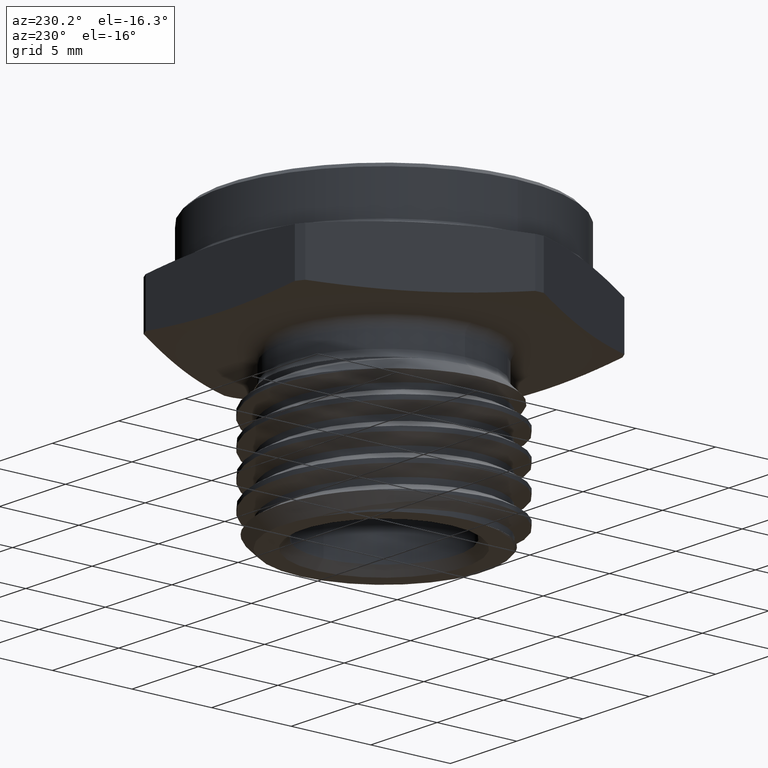
[diagram: clean part render]
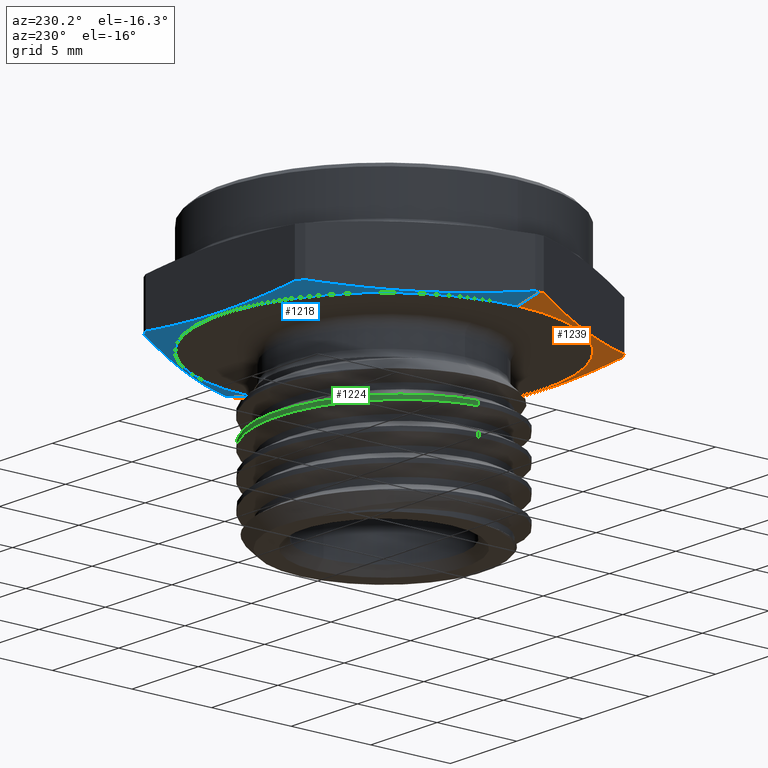
[diagram: same view with three faces highlighted in distinct colors, each labeled with its STEP entity id]
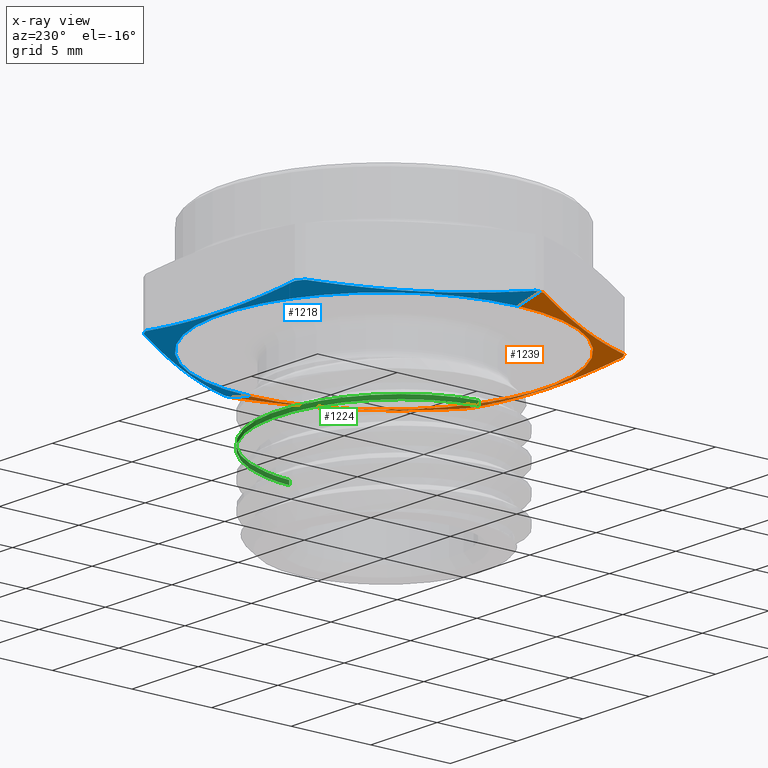
[diagram: x-ray of the same camera — body ghosted, the three highlighted faces saturated]
A machine part, auxiliary view with three faces highlighted in distinct colors.
The next image is the same camera in x-ray (body ghosted, the three faces saturated) — at least one of them is partly hidden behind the body in this view.
Their STEP definitions:

[orange] entity #1239 — the highlighted conical surface has half-angle 78 deg.
#41 = CIRCLE ( 'NONE', #225, 0.4616537180435968900 ) ;
#51 = CIRCLE ( 'NONE', #226, 0.4616537180435968900 ) ;
#74 = LINE ( 'NONE', #2191, #77 ) ;
#77 = VECTOR ( 'NONE', #2192, 39.37007874015747400 ) ;
#173 = ORIENTED_EDGE ( 'NONE', *, *, #732, .F. ) ;
#174 = ORIENTED_EDGE ( 'NONE', *, *, #645, .F. ) ;
#175 = ORIENTED_EDGE ( 'NONE', *, *, #691, .T. ) ;
#176 = ORIENTED_EDGE ( 'NONE', *, *, #651, .T. ) ;
#177 = ORIENTED_EDGE ( 'NONE', *, *, #650, .T. ) ;
#178 = ORIENTED_EDGE ( 'NONE', *, *, #656, .T. ) ;
#179 = ORIENTED_EDGE ( 'NONE', *, *, #668, .T. ) ;
#180 = ORIENTED_EDGE ( 'NONE', *, *, #663, .T. ) ;
#220 = AXIS2_PLACEMENT_3D ( 'NONE', #1752, #1753, #1754 ) ;
#222 = AXIS2_PLACEMENT_3D ( 'NONE', #1772, #1773, #1774 ) ;
#225 = AXIS2_PLACEMENT_3D ( 'NONE', #1787, #1788, #1789 ) ;
#226 = AXIS2_PLACEMENT_3D ( 'NONE', #1801, #1802, #1803 ) ;
#292 = AXIS2_PLACEMENT_3D ( 'NONE', #854, #855, #853 ) ;
#329 = ORIENTED_EDGE ( 'NONE', *, *, #669, .T. ) ;
#330 = ORIENTED_EDGE ( 'NONE', *, *, #617, .T. ) ;
#376 = VERTEX_POINT ( 'NONE', #1495 ) ;
#426 = B_SPLINE_CURVE_WITH_KNOTS ( 'NONE', 3,
 ( #1766, #1755, #1769, #1770, #1771 ),
 .UNSPECIFIED., .F., .F.,
 ( 4, 1, 4 ),
 ( 1.960092707715347300E-006, 0.005630175714661443200, 0.01125839133661517100 ),
 .UNSPECIFIED. ) ;
#430 = VERTEX_POINT ( 'NONE', #1519 ) ;
#431 = VERTEX_POINT ( 'NONE', #1520 ) ;
#433 = VERTEX_POINT ( 'NONE', #1521 ) ;
#435 = VERTEX_POINT ( 'NONE', #1518 ) ;
#437 = VERTEX_POINT ( 'NONE', #1524 ) ;
#438 = VERTEX_POINT ( 'NONE', #1525 ) ;
#453 = VERTEX_POINT ( 'NONE', #1540 ) ;
#461 = VERTEX_POINT ( 'NONE', #1548 ) ;
#467 = LINE ( 'NONE', #2353, #474 ) ;
#474 = VECTOR ( 'NONE', #2362, 39.37007874015748100 ) ;
#537 = B_SPLINE_CURVE_WITH_KNOTS ( 'NONE', 3,
 ( #1813, #1814, #1823, #1824, #1825, #1826, #1827, #1828 ),
 .UNSPECIFIED., .F., .F.,
 ( 4, 2, 2, 4 ),
 ( 0.02276292832055091700, 0.02840779804306880300, 0.03123023290432774500, 0.03405266776558668600 ),
 .UNSPECIFIED. ) ;
#538 = B_SPLINE_CURVE_WITH_KNOTS ( 'NONE', 3,
 ( #1822, #1821, #1829, #1830, #1831 ),
 .UNSPECIFIED., .F., .F.,
 ( 4, 1, 4 ),
 ( 1.960092708403469600E-006, 0.005630175714662139600, 0.01125839133661587700 ),
 .UNSPECIFIED. ) ;
#574 = FACE_OUTER_BOUND ( 'NONE', #1336, .T. ) ;
#581 = CONICAL_SURFACE ( 'NONE', #292, 0.3974999999999999100, 1.361356816555569800 ) ;
#617 = EDGE_CURVE ( 'NONE', #461, #435, #1270, .T. ) ;
#645 = EDGE_CURVE ( 'NONE', #431, #2550, #1288, .T. ) ;
#650 = EDGE_CURVE ( 'NONE', #376, #438, #426, .T. ) ;
#651 = EDGE_CURVE ( 'NONE', #453, #376, #1295, .T. ) ;
#656 = EDGE_CURVE ( 'NONE', #438, #430, #41, .T. ) ;
#663 = EDGE_CURVE ( 'NONE', #433, #437, #51, .T. ) ;
#668 = EDGE_CURVE ( 'NONE', #430, #433, #537, .T. ) ;
#669 = EDGE_CURVE ( 'NONE', #437, #461, #538, .T. ) ;
#691 = EDGE_CURVE ( 'NONE', #431, #453, #74, .T. ) ;
#732 = EDGE_CURVE ( 'NONE', #2550, #435, #467, .T. ) ;
#782 = AXIS2_PLACEMENT_3D ( 'NONE', #1555, #1556, #1557 ) ;
#853 = DIRECTION ( 'NONE',  ( 1.000000000000000000, 0.0000000000000000000, -1.224646799147349800E-016 ) ) ;
#854 = CARTESIAN_POINT ( 'NONE',  ( 5.961545136080848800E-033, 0.0000000000000000000, 4.867971026610713900E-017 ) ) ;
#855 = DIRECTION ( 'NONE',  ( 1.224646799147349800E-016, 0.0000000000000000000, 1.000000000000000000 ) ) ;
#928 = CARTESIAN_POINT ( 'NONE',  ( -0.3974999999999999100, 4.867971026610728100E-017, 9.735942053221427800E-017 ) ) ;
#1239 = ADVANCED_FACE ( 'NONE', ( #574 ), #581, .T. ) ;
#1270 = CIRCLE ( 'NONE', #782, 0.4616537180435968900 ) ;
#1288 = CIRCLE ( 'NONE', #220, 0.3974999999999999100 ) ;
#1295 = CIRCLE ( 'NONE', #222, 0.4616537180435968900 ) ;
#1336 = EDGE_LOOP ( 'NONE', ( #173, #174, #175, #176, #177, #178, #179, #180, #329, #330 ) ) ;
#1495 = CARTESIAN_POINT ( 'NONE',  ( 0.4615319346341489300, -0.01060323989809555800, 0.01363629372569551700 ) ) ;
#1518 = CARTESIAN_POINT ( 'NONE',  ( -0.4616537180435968900, 0.0000000000000000000, 0.01363629372569562800 ) ) ;
#1519 = CARTESIAN_POINT ( 'NONE',  ( 0.2215832922029018200, -0.4050000000000003000, 0.01363629372569554400 ) ) ;
#1520 = CARTESIAN_POINT ( 'NONE',  ( 0.3974999999999999100, 0.0000000000000000000, 0.0000000000000000000 ) ) ;
#1521 = CARTESIAN_POINT ( 'NONE',  ( -0.2215832922029017100, -0.4050000000000004200, 0.01363629372569551700 ) ) ;
#1524 = CARTESIAN_POINT ( 'NONE',  ( -0.2399486424312457800, -0.3943967601019043300, 0.01363629372569560200 ) ) ;
#1525 = CARTESIAN_POINT ( 'NONE',  ( 0.2399486424312466400, -0.3943967601019038300, 0.01363629372569551700 ) ) ;
#1540 = CARTESIAN_POINT ( 'NONE',  ( 0.4616537180435968900, 0.0000000000000000000, 0.01363629372569551700 ) ) ;
#1548 = CARTESIAN_POINT ( 'NONE',  ( -0.4615319346341489300, -0.01060323989809576700, 0.01363629372569551700 ) ) ;
#1555 = CARTESIAN_POINT ( 'NONE',  ( 1.669964346340616900E-018, 0.0000000000000000000, 0.01363629372569557200 ) ) ;
#1556 = DIRECTION ( 'NONE',  ( -1.224646799147349800E-016, -0.0000000000000000000, -1.000000000000000000 ) ) ;
#1557 = DIRECTION ( 'NONE',  ( -1.000000000000000000, 0.0000000000000000000, 1.201997518972976500E-016 ) ) ;
#1752 = CARTESIAN_POINT ( 'NONE',  ( 5.961545136080848800E-033, 0.0000000000000000000, 4.867971026610713900E-017 ) ) ;
#1753 = DIRECTION ( 'NONE',  ( -1.224646799147349800E-016, -0.0000000000000000000, -1.000000000000000000 ) ) ;
#1754 = DIRECTION ( 'NONE',  ( -1.000000000000000000, 0.0000000000000000000, 1.224646799147349800E-016 ) ) ;
#1755 = CARTESIAN_POINT ( 'NONE',  ( 0.4246013859336652500, -0.07456882659873033400, 0.006100813313059473400 ) ) ;
#1766 = CARTESIAN_POINT ( 'NONE',  ( 0.4615319346341489300, -0.01060323989809555800, 0.01363629372569551700 ) ) ;
#1769 = CARTESIAN_POINT ( 'NONE',  ( 0.3507402885326977300, -0.2024999999999999000, -0.002912464888009015700 ) ) ;
#1770 = CARTESIAN_POINT ( 'NONE',  ( 0.2768791911317303200, -0.3304311734012692100, 0.006100813313059502000 ) ) ;
#1771 = CARTESIAN_POINT ( 'NONE',  ( 0.2399486424312466400, -0.3943967601019038300, 0.01363629372569551700 ) ) ;
#1772 = CARTESIAN_POINT ( 'NONE',  ( 1.669964346340616900E-018, 0.0000000000000000000, 0.01363629372569557200 ) ) ;
#1773 = DIRECTION ( 'NONE',  ( -1.224646799147349800E-016, -0.0000000000000000000, -1.000000000000000000 ) ) ;
#1774 = DIRECTION ( 'NONE',  ( -1.000000000000000000, 0.0000000000000000000, 1.201997518972976500E-016 ) ) ;
#1787 = CARTESIAN_POINT ( 'NONE',  ( 1.669964346340616900E-018, 0.0000000000000000000, 0.01363629372569557200 ) ) ;
#1788 = DIRECTION ( 'NONE',  ( -1.224646799147349800E-016, -0.0000000000000000000, -1.000000000000000000 ) ) ;
#1789 = DIRECTION ( 'NONE',  ( -1.000000000000000000, 0.0000000000000000000, 1.201997518972976500E-016 ) ) ;
#1801 = CARTESIAN_POINT ( 'NONE',  ( 1.669964346340616900E-018, 0.0000000000000000000, 0.01363629372569557200 ) ) ;
#1802 = DIRECTION ( 'NONE',  ( -1.224646799147349800E-016, -0.0000000000000000000, -1.000000000000000000 ) ) ;
#1803 = DIRECTION ( 'NONE',  ( -1.000000000000000000, 0.0000000000000000000, 1.201997518972976500E-016 ) ) ;
#1813 = CARTESIAN_POINT ( 'NONE',  ( 0.2215832922029018200, -0.4050000000000003000, 0.01363629372569554400 ) ) ;
#1814 = CARTESIAN_POINT ( 'NONE',  ( 0.1478796552659299700, -0.4050000000000002500, 0.006116877794687288800 ) ) ;
#1821 = CARTESIAN_POINT ( 'NONE',  ( -0.2768791911317295400, -0.3304311734012696000, 0.006100813313059548800 ) ) ;
#1822 = CARTESIAN_POINT ( 'NONE',  ( -0.2399486424312457800, -0.3943967601019043300, 0.01363629372569560200 ) ) ;
#1823 = CARTESIAN_POINT ( 'NONE',  ( 0.07410851632100543000, -0.4050000000000002500, 0.001603347386844951900 ) ) ;
#1824 = CARTESIAN_POINT ( 'NONE',  ( -0.03669992150053284800, -0.4050000000000003000, 0.001589609590323484400 ) ) ;
#1825 = CARTESIAN_POINT ( 'NONE',  ( -0.07366059413825455600, -0.4050000000000004200, 0.002677211821446608700 ) ) ;
#1826 = CARTESIAN_POINT ( 'NONE',  ( -0.1476261356384558600, -0.4050000000000004200, 0.006820487993075045900 ) ) ;
#1827 = CARTESIAN_POINT ( 'NONE',  ( -0.1846688482685496200, -0.4050000000000004200, 0.009870196564959153600 ) ) ;
#1828 = CARTESIAN_POINT ( 'NONE',  ( -0.2215832922029017100, -0.4050000000000004200, 0.01363629372569551700 ) ) ;
#1829 = CARTESIAN_POINT ( 'NONE',  ( -0.3507402885326971800, -0.2025000000000002100, -0.002912464888008980600 ) ) ;
#1830 = CARTESIAN_POINT ( 'NONE',  ( -0.4246013859336653100, -0.07456882659873057000, 0.006100813313059559200 ) ) ;
#1831 = CARTESIAN_POINT ( 'NONE',  ( -0.4615319346341489300, -0.01060323989809576700, 0.01363629372569551700 ) ) ;
#2191 = CARTESIAN_POINT ( 'NONE',  ( 0.3974999999999999100, 0.0000000000000000000, 0.0000000000000000000 ) ) ;
#2192 = DIRECTION ( 'NONE',  ( 0.9781476007338042500, 0.0000000000000000000, 0.2079116908177663400 ) ) ;
#2353 = CARTESIAN_POINT ( 'NONE',  ( -0.3974999999999999100, 4.867971026610728100E-017, 9.735942053221427800E-017 ) ) ;
#2362 = DIRECTION ( 'NONE',  ( -0.9781476007338040200, 1.197885328332316500E-016, 0.2079116908177665300 ) ) ;
#2550 = VERTEX_POINT ( 'NONE', #928 ) ;

[blue] entity #1218 — the highlighted conical surface has half-angle 78 deg.
#74 = LINE ( 'NONE', #2191, #77 ) ;
#77 = VECTOR ( 'NONE', #2192, 39.37007874015747400 ) ;
#85 = CIRCLE ( 'NONE', #244, 0.4616537180435968900 ) ;
#141 = EDGE_LOOP ( 'NONE', ( #2580, #2581, #2582, #2583, #2584, #2585, #2586, #2587, #2588, #2589 ) ) ;
#244 = AXIS2_PLACEMENT_3D ( 'NONE', #2235, #2236, #2237 ) ;
#260 = AXIS2_PLACEMENT_3D ( 'NONE', #2359, #2360, #2361 ) ;
#261 = AXIS2_PLACEMENT_3D ( 'NONE', #2371, #2372, #2373 ) ;
#262 = AXIS2_PLACEMENT_3D ( 'NONE', #2379, #2380, #2381 ) ;
#263 = AXIS2_PLACEMENT_3D ( 'NONE', #2383, #2384, #2385 ) ;
#277 = AXIS2_PLACEMENT_3D ( 'NONE', #2514, #788, #790 ) ;
#368 = VERTEX_POINT ( 'NONE', #1485 ) ;
#377 = VERTEX_POINT ( 'NONE', #1496 ) ;
#431 = VERTEX_POINT ( 'NONE', #1520 ) ;
#435 = VERTEX_POINT ( 'NONE', #1518 ) ;
#436 = VERTEX_POINT ( 'NONE', #1523 ) ;
#441 = VERTEX_POINT ( 'NONE', #1528 ) ;
#453 = VERTEX_POINT ( 'NONE', #1540 ) ;
#459 = VERTEX_POINT ( 'NONE', #1546 ) ;
#467 = LINE ( 'NONE', #2353, #474 ) ;
#469 = CIRCLE ( 'NONE', #260, 0.4616537180435968900 ) ;
#470 = CIRCLE ( 'NONE', #262, 0.4616537180435968900 ) ;
#471 = CIRCLE ( 'NONE', #261, 0.4616537180435968900 ) ;
#472 = CIRCLE ( 'NONE', #263, 0.3974999999999999100 ) ;
#474 = VECTOR ( 'NONE', #2362, 39.37007874015748100 ) ;
#510 = FACE_OUTER_BOUND ( 'NONE', #141, .T. ) ;
#514 = CONICAL_SURFACE ( 'NONE', #277, 0.3974999999999999100, 1.361356816555569800 ) ;
#551 = B_SPLINE_CURVE_WITH_KNOTS ( 'NONE', 3,
 ( #2352, #2348, #2354, #2355, #2356 ),
 .UNSPECIFIED., .F., .F.,
 ( 4, 1, 4 ),
 ( 1.960092708423696800E-006, 0.005630175714662141400, 0.01125839133661585800 ),
 .UNSPECIFIED. ) ;
#552 = B_SPLINE_CURVE_WITH_KNOTS ( 'NONE', 3,
 ( #2357, #2358, #2363, #2364, #2365, #2366, #2367, #2368 ),
 .UNSPECIFIED., .F., .F.,
 ( 4, 2, 2, 4 ),
 ( 0.01016771019999832000, 0.01299290855102660000, 0.01581810690205488100, 0.02146850360411144100 ),
 .UNSPECIFIED. ) ;
#553 = B_SPLINE_CURVE_WITH_KNOTS ( 'NONE', 3,
 ( #2369, #2370, #2374, #2375, #2376 ),
 .UNSPECIFIED., .F., .F.,
 ( 4, 1, 4 ),
 ( 1.960092707691341900E-006, 0.005630175714661418900, 0.01125839133661514700 ),
 .UNSPECIFIED. ) ;
#691 = EDGE_CURVE ( 'NONE', #431, #453, #74, .T. ) ;
#699 = EDGE_CURVE ( 'NONE', #436, #453, #85, .T. ) ;
#726 = EDGE_CURVE ( 'NONE', #377, #436, #551, .T. ) ;
#727 = EDGE_CURVE ( 'NONE', #368, #377, #469, .T. ) ;
#728 = EDGE_CURVE ( 'NONE', #441, #368, #552, .T. ) ;
#729 = EDGE_CURVE ( 'NONE', #1977, #441, #471, .T. ) ;
#730 = EDGE_CURVE ( 'NONE', #459, #1977, #553, .T. ) ;
#731 = EDGE_CURVE ( 'NONE', #435, #459, #470, .T. ) ;
#732 = EDGE_CURVE ( 'NONE', #2550, #435, #467, .T. ) ;
#733 = EDGE_CURVE ( 'NONE', #2550, #431, #472, .T. ) ;
#788 = DIRECTION ( 'NONE',  ( 1.224646799147349800E-016, 0.0000000000000000000, 1.000000000000000000 ) ) ;
#790 = DIRECTION ( 'NONE',  ( 1.000000000000000000, 0.0000000000000000000, -1.224646799147349800E-016 ) ) ;
#928 = CARTESIAN_POINT ( 'NONE',  ( -0.3974999999999999100, 4.867971026610728100E-017, 9.735942053221427800E-017 ) ) ;
#931 = CARTESIAN_POINT ( 'NONE',  ( -0.2399486424312465300, 0.3943967601019038300, 0.01363629372569551700 ) ) ;
#1218 = ADVANCED_FACE ( 'NONE', ( #510 ), #514, .T. ) ;
#1485 = CARTESIAN_POINT ( 'NONE',  ( 0.2215832922029021300, 0.4050000000000001900, 0.01363629372569551700 ) ) ;
#1496 = CARTESIAN_POINT ( 'NONE',  ( 0.2399486424312465300, 0.3943967601019038300, 0.01363629372569554100 ) ) ;
#1518 = CARTESIAN_POINT ( 'NONE',  ( -0.4616537180435968900, 0.0000000000000000000, 0.01363629372569562800 ) ) ;
#1520 = CARTESIAN_POINT ( 'NONE',  ( 0.3974999999999999100, 0.0000000000000000000, 0.0000000000000000000 ) ) ;
#1523 = CARTESIAN_POINT ( 'NONE',  ( 0.4615319346341489300, 0.01060323989809651800, 0.01363629372569551700 ) ) ;
#1528 = CARTESIAN_POINT ( 'NONE',  ( -0.2215832922029023800, 0.4050000000000001400, 0.01363629372569560000 ) ) ;
#1540 = CARTESIAN_POINT ( 'NONE',  ( 0.4616537180435968900, 0.0000000000000000000, 0.01363629372569551700 ) ) ;
#1546 = CARTESIAN_POINT ( 'NONE',  ( -0.4615319346341490400, 0.01060323989809559800, 0.01363629372569562800 ) ) ;
#1977 = VERTEX_POINT ( 'NONE', #931 ) ;
#2191 = CARTESIAN_POINT ( 'NONE',  ( 0.3974999999999999100, 0.0000000000000000000, 0.0000000000000000000 ) ) ;
#2192 = DIRECTION ( 'NONE',  ( 0.9781476007338042500, 0.0000000000000000000, 0.2079116908177663400 ) ) ;
#2235 = CARTESIAN_POINT ( 'NONE',  ( 1.669964346340616900E-018, 0.0000000000000000000, 0.01363629372569557200 ) ) ;
#2236 = DIRECTION ( 'NONE',  ( -1.224646799147349800E-016, -0.0000000000000000000, -1.000000000000000000 ) ) ;
#2237 = DIRECTION ( 'NONE',  ( -1.000000000000000000, 0.0000000000000000000, 1.201997518972976500E-016 ) ) ;
#2348 = CARTESIAN_POINT ( 'NONE',  ( 0.2768791911317302600, 0.3304311734012692100, 0.006100813313059501100 ) ) ;
#2352 = CARTESIAN_POINT ( 'NONE',  ( 0.2399486424312465300, 0.3943967601019038300, 0.01363629372569554100 ) ) ;
#2353 = CARTESIAN_POINT ( 'NONE',  ( -0.3974999999999999100, 4.867971026610728100E-017, 9.735942053221427800E-017 ) ) ;
#2354 = CARTESIAN_POINT ( 'NONE',  ( 0.3507402885326976700, 0.2025000000000002100, -0.002912464888008956800 ) ) ;
#2355 = CARTESIAN_POINT ( 'NONE',  ( 0.4246013859336653100, 0.07456882659873113900, 0.006100813313059484700 ) ) ;
#2356 = CARTESIAN_POINT ( 'NONE',  ( 0.4615319346341489300, 0.01060323989809651800, 0.01363629372569551700 ) ) ;
#2357 = CARTESIAN_POINT ( 'NONE',  ( -0.2215832922029023800, 0.4050000000000001400, 0.01363629372569560000 ) ) ;
#2358 = CARTESIAN_POINT ( 'NONE',  ( -0.1846688483680798700, 0.4050000000000002500, 0.009870196575113414700 ) ) ;
#2359 = CARTESIAN_POINT ( 'NONE',  ( 1.669964346340616900E-018, 0.0000000000000000000, 0.01363629372569557200 ) ) ;
#2360 = DIRECTION ( 'NONE',  ( -1.224646799147349800E-016, -0.0000000000000000000, -1.000000000000000000 ) ) ;
#2361 = DIRECTION ( 'NONE',  ( -1.000000000000000000, 0.0000000000000000000, 1.201997518972976500E-016 ) ) ;
#2362 = DIRECTION ( 'NONE',  ( -0.9781476007338040200, 1.197885328332316500E-016, 0.2079116908177665300 ) ) ;
#2363 = CARTESIAN_POINT ( 'NONE',  ( -0.1476261358480751300, 0.4050000000000002500, 0.006820488009630967400 ) ) ;
#2364 = CARTESIAN_POINT ( 'NONE',  ( -0.07366059448121584100, 0.4050000000000003000, 0.002677211835844144000 ) ) ;
#2365 = CARTESIAN_POINT ( 'NONE',  ( -0.03669992187871331400, 0.4050000000000003000, 0.001589609597616528600 ) ) ;
#2366 = CARTESIAN_POINT ( 'NONE',  ( 0.07410851594145809200, 0.4050000000000003000, 0.001603347372118000200 ) ) ;
#2367 = CARTESIAN_POINT ( 'NONE',  ( 0.1478796550287041500, 0.4050000000000004200, 0.006116877770484931700 ) ) ;
#2368 = CARTESIAN_POINT ( 'NONE',  ( 0.2215832922029021300, 0.4050000000000001900, 0.01363629372569551700 ) ) ;
#2369 = CARTESIAN_POINT ( 'NONE',  ( -0.4615319346341490400, 0.01060323989809559800, 0.01363629372569562800 ) ) ;
#2370 = CARTESIAN_POINT ( 'NONE',  ( -0.4246013859336649800, 0.07456882659873025100, 0.006100813313059551400 ) ) ;
#2371 = CARTESIAN_POINT ( 'NONE',  ( 1.669964346340616900E-018, 0.0000000000000000000, 0.01363629372569557200 ) ) ;
#2372 = DIRECTION ( 'NONE',  ( -1.224646799147349800E-016, -0.0000000000000000000, -1.000000000000000000 ) ) ;
#2373 = DIRECTION ( 'NONE',  ( -1.000000000000000000, 0.0000000000000000000, 1.201997518972976500E-016 ) ) ;
#2374 = CARTESIAN_POINT ( 'NONE',  ( -0.3507402885326978400, 0.2024999999999996800, -0.002912464888008932000 ) ) ;
#2375 = CARTESIAN_POINT ( 'NONE',  ( -0.2768791911317302600, 0.3304311734012692600, 0.006100813313059542800 ) ) ;
#2376 = CARTESIAN_POINT ( 'NONE',  ( -0.2399486424312465300, 0.3943967601019038300, 0.01363629372569551700 ) ) ;
#2379 = CARTESIAN_POINT ( 'NONE',  ( 1.669964346340616900E-018, 0.0000000000000000000, 0.01363629372569557200 ) ) ;
#2380 = DIRECTION ( 'NONE',  ( -1.224646799147349800E-016, -0.0000000000000000000, -1.000000000000000000 ) ) ;
#2381 = DIRECTION ( 'NONE',  ( -1.000000000000000000, 0.0000000000000000000, 1.201997518972976500E-016 ) ) ;
#2383 = CARTESIAN_POINT ( 'NONE',  ( 5.961545136080848800E-033, 0.0000000000000000000, 4.867971026610713900E-017 ) ) ;
#2384 = DIRECTION ( 'NONE',  ( -1.224646799147349800E-016, -0.0000000000000000000, -1.000000000000000000 ) ) ;
#2385 = DIRECTION ( 'NONE',  ( -1.000000000000000000, 0.0000000000000000000, 1.224646799147349800E-016 ) ) ;
#2514 = CARTESIAN_POINT ( 'NONE',  ( 5.961545136080848800E-033, 0.0000000000000000000, 4.867971026610713900E-017 ) ) ;
#2550 = VERTEX_POINT ( 'NONE', #928 ) ;
#2580 = ORIENTED_EDGE ( 'NONE', *, *, #733, .F. ) ;
#2581 = ORIENTED_EDGE ( 'NONE', *, *, #732, .T. ) ;
#2582 = ORIENTED_EDGE ( 'NONE', *, *, #731, .T. ) ;
#2583 = ORIENTED_EDGE ( 'NONE', *, *, #730, .T. ) ;
#2584 = ORIENTED_EDGE ( 'NONE', *, *, #729, .T. ) ;
#2585 = ORIENTED_EDGE ( 'NONE', *, *, #728, .T. ) ;
#2586 = ORIENTED_EDGE ( 'NONE', *, *, #727, .T. ) ;
#2587 = ORIENTED_EDGE ( 'NONE', *, *, #726, .T. ) ;
#2588 = ORIENTED_EDGE ( 'NONE', *, *, #699, .T. ) ;
#2589 = ORIENTED_EDGE ( 'NONE', *, *, #691, .F. ) ;

[green] entity #1224 — the highlighted cylindrical surface (partial cylindrical patch) has radius 7.1438 mm, axis along (-0, -0, 1).
#23 = ORIENTED_EDGE ( 'NONE', *, *, #629, .F. ) ;
#24 = ORIENTED_EDGE ( 'NONE', *, *, #630, .T. ) ;
#25 = ORIENTED_EDGE ( 'NONE', *, *, #631, .T. ) ;
#26 = ORIENTED_EDGE ( 'NONE', *, *, #632, .F. ) ;
#123 = EDGE_LOOP ( 'NONE', ( #23, #24, #25, #26 ) ) ;
#283 = AXIS2_PLACEMENT_3D ( 'NONE', #807, #808, #806 ) ;
#413 =( BOUNDED_CURVE ( )  B_SPLINE_CURVE ( 2, ( #1615, #1604, #1618, #1619, #1620, #1621, #1622, #1623, #1624, #1625, #1626 ),
 .UNSPECIFIED., .F., .T. ) 
 B_SPLINE_CURVE_WITH_KNOTS ( ( 3, 2, 2, 2, 2, 3 ),
 ( 0.3571429512412068700, 0.3750000000000000000, 0.3928571428571429000, 0.4107142857142857000, 0.4285714285714286000, 0.4285715226697760500 ),
 .UNSPECIFIED. ) 
 CURVE ( )  GEOMETRIC_REPRESENTATION_ITEM ( )  RATIONAL_B_SPLINE_CURVE ( ( 0.9999991977694662200, 0.9238799336286672700, 1.000000000000000000, 0.9238795325112867400, 1.000000000000000000, 0.9238795325112867400, 1.000000000000000000, 0.9238795325112867400, 1.000000000000000000, 0.9999995988826289000, 0.9999991977694852000 ) ) 
 REPRESENTATION_ITEM ( '' )  );
#414 =( BOUNDED_CURVE ( )  B_SPLINE_CURVE ( 2, ( #1628, #1617, #1631, #1632, #1633, #1634, #1635, #1636, #1637, #1638, #1639 ),
 .UNSPECIFIED., .F., .T. ) 
 B_SPLINE_CURVE_WITH_KNOTS ( ( 3, 2, 2, 2, 2, 3 ),
 ( 0.2142858083840617500, 0.2321428571428572100, 0.2500000000000000000, 0.2678571428571429000, 0.2857142857142857000, 0.2857143798126815500 ),
 .UNSPECIFIED. ) 
 CURVE ( )  GEOMETRIC_REPRESENTATION_ITEM ( )  RATIONAL_B_SPLINE_CURVE ( ( 0.9999991977694852000, 0.9238799336286578300, 1.000000000000000000, 0.9238795325112867400, 1.000000000000000000, 0.9238795325112867400, 1.000000000000000000, 0.9238795325112867400, 1.000000000000000000, 0.9999995988824226200, 0.9999991977690725300 ) ) 
 REPRESENTATION_ITEM ( '' )  );
#444 = VERTEX_POINT ( 'NONE', #1531 ) ;
#445 = VERTEX_POINT ( 'NONE', #1532 ) ;
#449 = VERTEX_POINT ( 'NONE', #1536 ) ;
#450 = VERTEX_POINT ( 'NONE', #1537 ) ;
#519 = FACE_OUTER_BOUND ( 'NONE', #123, .T. ) ;
#524 = CYLINDRICAL_SURFACE ( 'NONE', #283, 0.2812500000000000600 ) ;
#629 = EDGE_CURVE ( 'NONE', #450, #449, #413, .T. ) ;
#630 = EDGE_CURVE ( 'NONE', #450, #445, #1280, .T. ) ;
#631 = EDGE_CURVE ( 'NONE', #445, #444, #414, .T. ) ;
#632 = EDGE_CURVE ( 'NONE', #449, #444, #1283, .T. ) ;
#806 = DIRECTION ( 'NONE',  ( 1.000000000000000000, 0.0000000000000000000, 0.0000000000000000000 ) ) ;
#807 = CARTESIAN_POINT ( 'NONE',  ( 0.0000000000000000000, 0.0000000000000000000, -0.3900000000000000100 ) ) ;
#808 = DIRECTION ( 'NONE',  ( -0.0000000000000000000, -0.0000000000000000000, 1.000000000000000000 ) ) ;
#1224 = ADVANCED_FACE ( 'NONE', ( #519 ), #524, .T. ) ;
#1280 = LINE ( 'NONE', #1627, #1282 ) ;
#1282 = VECTOR ( 'NONE', #1629, 39.37007874015748100 ) ;
#1283 = LINE ( 'NONE', #1640, #1284 ) ;
#1284 = VECTOR ( 'NONE', #1641, 39.37007874015748100 ) ;
#1531 = CARTESIAN_POINT ( 'NONE',  ( 0.2812500000000000000, 8.116393866853513800E-017, -0.1920517395986001400 ) ) ;
#1532 = CARTESIAN_POINT ( 'NONE',  ( -0.2812500000000000000, -1.156050965793914700E-016, -0.1608017395986001700 ) ) ;
#1536 = CARTESIAN_POINT ( 'NONE',  ( 0.2812499999999999400, 8.116003072549823300E-017, -0.2024999979162771500 ) ) ;
#1537 = CARTESIAN_POINT ( 'NONE',  ( -0.2812499999999999400, -1.155978668847732100E-016, -0.1712499979162772400 ) ) ;
#1604 = CARTESIAN_POINT ( 'NONE',  ( -0.2812499999999888400, 0.1164968999536300500, -0.1751562321618991000 ) ) ;
#1615 = CARTESIAN_POINT ( 'NONE',  ( -0.2812499999999999400, -1.155978668847732100E-016, -0.1712499979162772400 ) ) ;
#1617 = CARTESIAN_POINT ( 'NONE',  ( -0.2812500000000000000, 0.1164968999536190000, -0.1647079738442215900 ) ) ;
#1618 = CARTESIAN_POINT ( 'NONE',  ( -0.1988745842865448100, 0.1988729801276532300, -0.1790624598819325900 ) ) ;
#1619 = CARTESIAN_POINT ( 'NONE',  ( -0.1164986987281159700, 0.2812495301504512300, -0.1829687098819326500 ) ) ;
#1620 = CARTESIAN_POINT ( 'NONE',  ( -1.134311630353843900E-006, 0.2812499999977125500, -0.1868749598819325900 ) ) ;
#1621 = CARTESIAN_POINT ( 'NONE',  ( 0.1164964301048552600, 0.2812504698449737600, -0.1907812098819326200 ) ) ;
#1622 = CARTESIAN_POINT ( 'NONE',  ( 0.1988729801276532300, 0.1988745842865448400, -0.1946874598819326200 ) ) ;
#1623 = CARTESIAN_POINT ( 'NONE',  ( 0.2812495301504514000, 0.1164986987281158300, -0.1985937098819326200 ) ) ;
#1624 = CARTESIAN_POINT ( 'NONE',  ( 0.2812499999977125500, 1.134311630371065600E-006, -0.2024999598819326200 ) ) ;
#1625 = CARTESIAN_POINT ( 'NONE',  ( 0.2812500000000000000, 5.671558152284192300E-007, -0.2024999788990890200 ) ) ;
#1626 = CARTESIAN_POINT ( 'NONE',  ( 0.2812499999999999400, 8.116003072549823300E-017, -0.2024999979162771500 ) ) ;
#1627 = CARTESIAN_POINT ( 'NONE',  ( -0.2812500000000000600, 3.444319122601931000E-017, -0.3900000000000000100 ) ) ;
#1628 = CARTESIAN_POINT ( 'NONE',  ( -0.2812500000000000000, -1.156050965793914700E-016, -0.1608017395986001700 ) ) ;
#1629 = DIRECTION ( 'NONE',  ( -0.0000000000000000000, -0.0000000000000000000, 1.000000000000000000 ) ) ;
#1631 = CARTESIAN_POINT ( 'NONE',  ( -0.1988745842865448100, 0.1988729801276532500, -0.1686142015642555800 ) ) ;
#1632 = CARTESIAN_POINT ( 'NONE',  ( -0.1164986987281159800, 0.2812495301504512900, -0.1725204515642555500 ) ) ;
#1633 = CARTESIAN_POINT ( 'NONE',  ( -1.134311630353844300E-006, 0.2812499999977126100, -0.1764267015642555800 ) ) ;
#1634 = CARTESIAN_POINT ( 'NONE',  ( 0.1164964301048552800, 0.2812504698449738700, -0.1803329515642555500 ) ) ;
#1635 = CARTESIAN_POINT ( 'NONE',  ( 0.1988729801276532500, 0.1988745842865448400, -0.1842392015642555500 ) ) ;
#1636 = CARTESIAN_POINT ( 'NONE',  ( 0.2812495301504514000, 0.1164986987281158600, -0.1881454515642555800 ) ) ;
#1637 = CARTESIAN_POINT ( 'NONE',  ( 0.2812499999977126100, 1.134311630371065800E-006, -0.1920517015642555500 ) ) ;
#1638 = CARTESIAN_POINT ( 'NONE',  ( 0.2812499999999999400, 5.671555234741073900E-007, -0.1920517205814217300 ) ) ;
#1639 = CARTESIAN_POINT ( 'NONE',  ( 0.2812500000000000000, 8.116393866853513800E-017, -0.1920517395986001400 ) ) ;
#1640 = CARTESIAN_POINT ( 'NONE',  ( 0.2812500000000000600, 0.0000000000000000000, -0.3900000000000000100 ) ) ;
#1641 = DIRECTION ( 'NONE',  ( -0.0000000000000000000, -0.0000000000000000000, 1.000000000000000000 ) ) ;